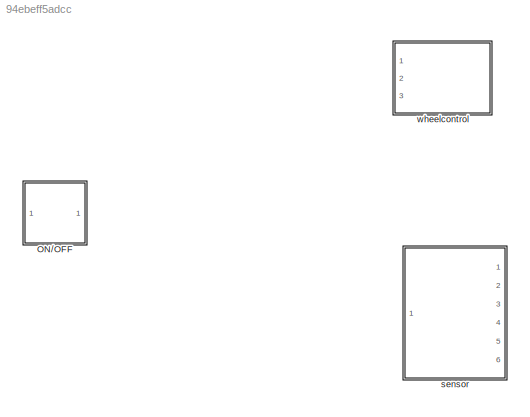
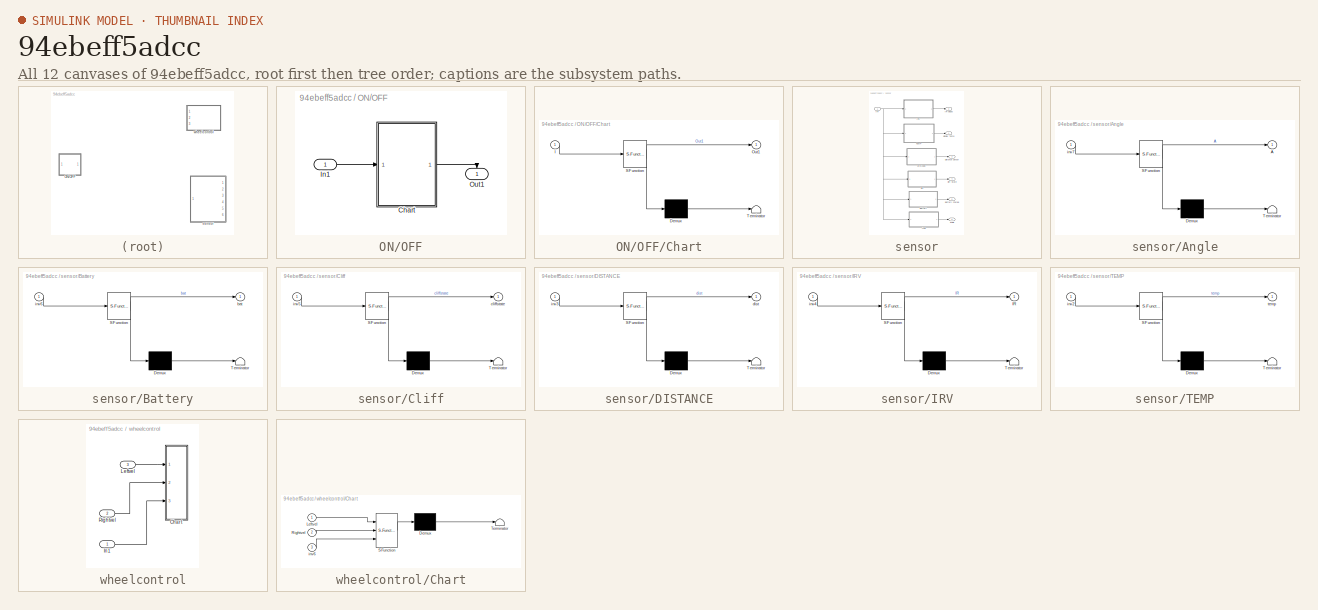
[diagram: thumbnail index - all 12 canvases of the model, root first then tree order]
MODEL slx_94ebeff5adcc
KIND library
CONFIG AbsTol = auto
CONFIG EnableMultiTasking = off
CONFIG FixedStep = auto
CONFIG MaxStep = auto
CONFIG MinStep = auto
CONFIG RelTol = 1e-3
CONFIG SampleTimeConstraint = Unconstrained
CONFIG Solver = VariableStepAuto
CONFIG SolverName = VariableStepAuto
CONFIG StartTime = 0.0
CONFIG StopTime = 10.0
BLOCK [SubSystem] ON//OFF
  Ports = [1, 1]
  RequestExecContextInheritance = off
  Variant = off
BLOCK [SubSystem] ON//OFF/Chart
  ErrorFcn = Stateflow.Translate.translate
  PermitHierarchicalResolution = ExplicitOnly
  Ports = [1, 1]
  RequestExecContextInheritance = off
  SFBlockType = Chart
  TreatAsAtomicUnit = on
  Variant = off
BLOCK [Demux] ON//OFF/Chart/ Demux 
  Outputs = 1
  Ports = [1, 1]
BLOCK [S-Function] ON//OFF/Chart/ SFunction 
  EnableBusSupport = off
  FunctionName = sf_sfun
  PortCounts = [1 2]
  Ports = [1, 2]
  SFcnIsStateOwnerBlock = off
  SFunctionDeploymentMode = off
  Tag = Stateflow S-Function library 2
BLOCK [Terminator] ON//OFF/Chart/ Terminator 
BLOCK [Inport] ON//OFF/Chart/I
  IconDisplay = Port number
BLOCK [Outport] ON//OFF/Chart/Out1
  IconDisplay = Port number
BLOCK [Inport] ON//OFF/In1
  IconDisplay = Port number
BLOCK [Outport] ON//OFF/Out1
  IconDisplay = Port number
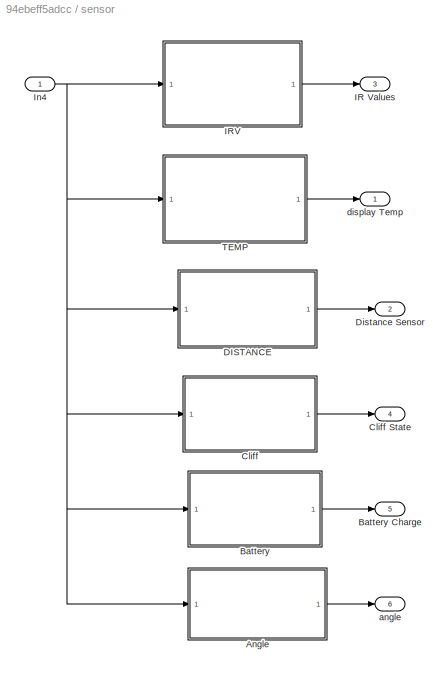
BLOCK [SubSystem] sensor
  PermitHierarchicalResolution = None
  Ports = [1, 6]
  RequestExecContextInheritance = off
  TreatAsAtomicUnit = on
  Variant = off
BLOCK [SubSystem] sensor/Angle
  ErrorFcn = Stateflow.Translate.translate
  PermitHierarchicalResolution = ExplicitOnly
  Ports = [1, 1]
  RequestExecContextInheritance = off
  SFBlockType = Chart
  TreatAsAtomicUnit = on
  Variant = off
BLOCK [Demux] sensor/Angle/ Demux 
  Outputs = 1
  Ports = [1, 1]
BLOCK [S-Function] sensor/Angle/ SFunction 
  EnableBusSupport = off
  FunctionName = sf_sfun
  PortCounts = [1 2]
  Ports = [1, 2]
  SFcnIsStateOwnerBlock = off
  SFunctionDeploymentMode = off
  Tag = Stateflow S-Function library 6
BLOCK [Terminator] sensor/Angle/ Terminator 
BLOCK [Outport] sensor/Angle/A
  IconDisplay = Port number
BLOCK [Inport] sensor/Angle/inv7
  IconDisplay = Port number
BLOCK [SubSystem] sensor/Battery
  ErrorFcn = Stateflow.Translate.translate
  PermitHierarchicalResolution = ExplicitOnly
  Ports = [1, 1]
  RequestExecContextInheritance = off
  SFBlockType = Chart
  TreatAsAtomicUnit = on
  Variant = off
BLOCK [Outport] sensor/Battery Charge
  IconDisplay = Port number
  Port = 5
BLOCK [Demux] sensor/Battery/ Demux 
  Outputs = 1
  Ports = [1, 1]
BLOCK [S-Function] sensor/Battery/ SFunction 
  EnableBusSupport = off
  FunctionName = sf_sfun
  PortCounts = [1 2]
  Ports = [1, 2]
  SFcnIsStateOwnerBlock = off
  SFunctionDeploymentMode = off
  Tag = Stateflow S-Function library 5
BLOCK [Terminator] sensor/Battery/ Terminator 
BLOCK [Outport] sensor/Battery/bat
  IconDisplay = Port number
BLOCK [Inport] sensor/Battery/inv6
  IconDisplay = Port number
BLOCK [SubSystem] sensor/Cliff
  ErrorFcn = Stateflow.Translate.translate
  PermitHierarchicalResolution = ExplicitOnly
  Ports = [1, 1]
  RequestExecContextInheritance = off
  SFBlockType = Chart
  TreatAsAtomicUnit = on
  Variant = off
BLOCK [Outport] sensor/Cliff State
  IconDisplay = Port number
  Port = 4
BLOCK [Demux] sensor/Cliff/ Demux 
  Outputs = 1
  Ports = [1, 1]
BLOCK [S-Function] sensor/Cliff/ SFunction 
  EnableBusSupport = off
  FunctionName = sf_sfun
  PortCounts = [1 2]
  Ports = [1, 2]
  SFcnIsStateOwnerBlock = off
  SFunctionDeploymentMode = off
  Tag = Stateflow S-Function library 3
BLOCK [Terminator] sensor/Cliff/ Terminator 
BLOCK [Outport] sensor/Cliff/cliffstate
  IconDisplay = Port number
BLOCK [Inport] sensor/Cliff/inv5
  IconDisplay = Port number
BLOCK [SubSystem] sensor/DISTANCE
  ErrorFcn = Stateflow.Translate.translate
  PermitHierarchicalResolution = ExplicitOnly
  Ports = [1, 1]
  RequestExecContextInheritance = off
  SFBlockType = Chart
  TreatAsAtomicUnit = on
  Variant = off
BLOCK [Demux] sensor/DISTANCE/ Demux 
  Outputs = 1
  Ports = [1, 1]
BLOCK [S-Function] sensor/DISTANCE/ SFunction 
  EnableBusSupport = off
  FunctionName = sf_sfun
  PortCounts = [1 2]
  Ports = [1, 2]
  SFcnIsStateOwnerBlock = off
  SFunctionDeploymentMode = off
  Tag = Stateflow S-Function library 10
BLOCK [Terminator] sensor/DISTANCE/ Terminator 
BLOCK [Outport] sensor/DISTANCE/dist
  IconDisplay = Port number
BLOCK [Inport] sensor/DISTANCE/inv3
  IconDisplay = Port number
BLOCK [Outport] sensor/Distance Sensor
  IconDisplay = Port number
  Port = 2
BLOCK [Outport] sensor/IR Values
  IconDisplay = Port number
  Port = 3
BLOCK [SubSystem] sensor/IRV
  ErrorFcn = Stateflow.Translate.translate
  PermitHierarchicalResolution = ExplicitOnly
  Ports = [1, 1]
  RequestExecContextInheritance = off
  SFBlockType = Chart
  TreatAsAtomicUnit = on
  Variant = off
BLOCK [Demux] sensor/IRV/ Demux 
  Outputs = 1
  Ports = [1, 1]
BLOCK [S-Function] sensor/IRV/ SFunction 
  EnableBusSupport = off
  FunctionName = sf_sfun
  PortCounts = [1 2]
  Ports = [1, 2]
  SFcnIsStateOwnerBlock = off
  SFunctionDeploymentMode = off
  Tag = Stateflow S-Function library 8
BLOCK [Terminator] sensor/IRV/ Terminator 
BLOCK [Outport] sensor/IRV/IR
  IconDisplay = Port number
BLOCK [Inport] sensor/IRV/inv4
  IconDisplay = Port number
BLOCK [Inport] sensor/In4
  IconDisplay = Port number
BLOCK [SubSystem] sensor/TEMP
  ErrorFcn = Stateflow.Translate.translate
  PermitHierarchicalResolution = ExplicitOnly
  Ports = [1, 1]
  RequestExecContextInheritance = off
  SFBlockType = Chart
  TreatAsAtomicUnit = on
  Variant = off
BLOCK [Demux] sensor/TEMP/ Demux 
  Outputs = 1
  Ports = [1, 1]
BLOCK [S-Function] sensor/TEMP/ SFunction 
  EnableBusSupport = off
  FunctionName = sf_sfun
  PortCounts = [1 2]
  Ports = [1, 2]
  SFcnIsStateOwnerBlock = off
  SFunctionDeploymentMode = off
  Tag = Stateflow S-Function library 9
BLOCK [Terminator] sensor/TEMP/ Terminator 
BLOCK [Inport] sensor/TEMP/inv2
  IconDisplay = Port number
BLOCK [Outport] sensor/TEMP/temp
  IconDisplay = Port number
BLOCK [Outport] sensor/angle
  IconDisplay = Port number
  Port = 6
BLOCK [Outport] sensor/display Temp
  IconDisplay = Port number
BLOCK [SubSystem] wheelcontrol
  AncestorBlock = mylibrary/wheelcontrol
  Ports = [3]
  RequestExecContextInheritance = off
  Variant = off
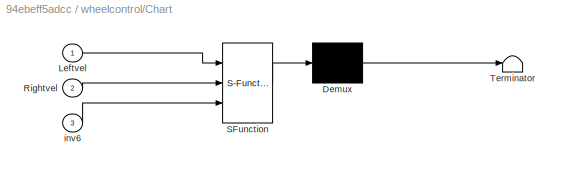
BLOCK [SubSystem] wheelcontrol/Chart
  ErrorFcn = Stateflow.Translate.translate
  PermitHierarchicalResolution = ExplicitOnly
  Ports = [3]
  RequestExecContextInheritance = off
  SFBlockType = Chart
  TreatAsAtomicUnit = on
  Variant = off
BLOCK [Demux] wheelcontrol/Chart/ Demux 
  Outputs = 1
  Ports = [1, 1]
BLOCK [S-Function] wheelcontrol/Chart/ SFunction 
  EnableBusSupport = off
  FunctionName = sf_sfun
  PortCounts = [3 1]
  Ports = [3, 1]
  SFcnIsStateOwnerBlock = off
  SFunctionDeploymentMode = off
  Tag = Stateflow S-Function library 11
BLOCK [Terminator] wheelcontrol/Chart/ Terminator 
BLOCK [Inport] wheelcontrol/Chart/Leftvel
  IconDisplay = Port number
BLOCK [Inport] wheelcontrol/Chart/Rightvel
  IconDisplay = Port number
  Port = 2
BLOCK [Inport] wheelcontrol/Chart/inv6
  IconDisplay = Port number
  Port = 3
BLOCK [Inport] wheelcontrol/In1
  IconDisplay = Port number
BLOCK [Inport] wheelcontrol/Leftvel
  IconDisplay = Port number
  Port = 3
BLOCK [Inport] wheelcontrol/Rightvel
  IconDisplay = Port number
  Port = 2
LINE ON//OFF/Chart:1 -> ON//OFF/Out1:1
LINE ON//OFF/In1:1 -> ON//OFF/Chart:1
LINE sensor/Angle:1 -> sensor/angle:1
LINE sensor/Battery:1 -> sensor/Battery Charge:1
LINE sensor/Cliff:1 -> sensor/Cliff State:1
LINE sensor/DISTANCE:1 -> sensor/Distance Sensor:1
LINE sensor/IRV:1 -> sensor/IR Values:1
NET sensor/In4:1 -> sensor/Angle:1, sensor/Battery:1, sensor/Cliff:1, sensor/DISTANCE:1, sensor/IRV:1, sensor/TEMP:1
LINE sensor/TEMP:1 -> sensor/display Temp:1
note: NET lines group one-source signal fan-out (src -> all destinations, sorted); 1:1 wires keep LINE
CHART ON//OFF/Chart states=4 transitions=3
  STATE_LABEL 'tcpinit'
  STATE_LABEL "SCRIPT:\nfunction tcpinit\ncoder.extrinsic('RoombaInit_wifi');\ncoder.extrinsic('assignin');\npersistent tcpobj\ntcpobj=RoombaInit_wifi('10.0.0.1','full');\nassignin('base','ha',tcpobj);\n\n\n"
  STATE_LABEL 'init\nen:\ntcpinit;\nOut1=1;\n'
  STATE_LABEL 'OFF'
  STATE_LABEL "SCRIPT:\nfunction OFF\npersistent sl\n\ncoder.extrinsic('evalin');\ncoder.extrinsic('get');\nsl = evalin('base','ha');\ncoder.extrinsic('PowerOffRoomba')\nPowerOffRoomba(sl);\n\n\n\n\n"
  STATE_LABEL 'TurnRoombaOff\nen:\nOFF;\nOut1=0;\n'
CHART sensor/Cliff states=3 transitions=3
  STATE_LABEL 'y=CliffState'
  STATE_LABEL "SCRIPT:\nfunction y=CliffState\npersistent so4\ny=zeros(1,4);\ncoder.extrinsic('evalin');\ncoder.extrinsic('get');\nso4 = evalin('base','ha');\ncsr=[0,0,0,0];\ncoder.extrinsic('CliffStateRoomba');\ncsr= CliffStateRoomba(so4);\ny=csr;\n \n"
  STATE_LABEL 'on\nen,du:\ncliffstate=CliffState;'
  STATE_LABEL 'off\nen,du:\ncliffstate=[0,0,0,0];'
CHART sensor/Battery states=3 transitions=3
  STATE_LABEL 'y=battery'
  STATE_LABEL "SCRIPT:\nfunction y=battery\npersistent so5\ny=0;\ncoder.extrinsic('evalin');\ncoder.extrinsic('get');\nso5 = evalin('base','ha');\nB=0;\ncoder.extrinsic('BatteryChargeReaderRoomba_me');\nB= BatteryChargeReaderRoomba_me(so5);\ny=B;\n \n"
  STATE_LABEL 'on\nen,du:\nbat=battery;'
  STATE_LABEL 'off\nen,du:\nbat=0;\n'
CHART sensor/Angle states=3 transitions=3
  STATE_LABEL 'y=Angle'
  STATE_LABEL "SCRIPT:\nfunction y=Angle\npersistent so6\ny=0;\nA=0;\ncoder.extrinsic('AngleSensorRoomba');\ncoder.extrinsic('evalin');\ncoder.extrinsic('get');\nso6 = evalin('base','ha');\nA= AngleSensorRoomba(so6);\n\ny=A;"
  STATE_LABEL 'on\nen,du:\nA=Angle;'
  STATE_LABEL 'off\nen,du:\nA=0;'
CHART sensor/IRV states=3 transitions=3
  STATE_LABEL 'y= IRV'
  STATE_LABEL "SCRIPT:\nfunction y= IRV\npersistent so1\ny=zeros(1,6);\ncoder.extrinsic('evalin');\n\n    so1 = evalin('base','ha');\n\nIR = zeros(1, 6);\ncoder.extrinsic('RangeStateRoomba');\nIR = RangeStateRoomba(so1);\ny=IR;\n\n"
  STATE_LABEL 'on\nen,du:\nIR=IRV;'
  STATE_LABEL 'off\nen,du:\nIR=zeros(1,6);'
CHART sensor/TEMP states=3 transitions=3
  STATE_LABEL 'y= T'
  STATE_LABEL "SCRIPT:\nfunction y= T\npersistent so2\ny=1;\ncoder.extrinsic('evalin');\ncoder.extrinsic('get');\nso2 = evalin('base','ha');\ntemp=0;  \ncoder.extrinsic('TemperatureRoomba');\ntemp=TemperatureRoomba(so2);\n\ny=temp;\n\n"
  STATE_LABEL 'off\nen,du:\ntemp=0;'
  STATE_LABEL 'on\nen,du:\ntemp=T;'
CHART sensor/DISTANCE states=3 transitions=3
  STATE_LABEL 'y=Distance'
  STATE_LABEL "SCRIPT:\nfunction y=Distance\npersistent so3\ny=0;\ncoder.extrinsic('evalin');\ncoder.extrinsic('get');\nso3 = evalin('base','ha');\ndist=0;\ncoder.extrinsic('DistanceSensorRoomba');\ndist= DistanceSensorRoomba(so3);\ny=dist;\n"
  STATE_LABEL 'on\nen,du:\ndist=Distance;\n'
  STATE_LABEL 'off\nen,du:\ndist=0;'
CHART wheelcontrol/Chart states=3 transitions=3
  STATE_LABEL 'tcpget3(u1,u2)'
  STATE_LABEL "SCRIPT:\nfunction tcpget3(u1,u2)\npersistent so\ncoder.extrinsic('evalin');\ncoder.extrinsic('get');\nso = evalin('base','ha');\ncoder.extrinsic('SetWheelVelRoomba');\nSetWheelVelRoomba(so,u1 , u2);"
  STATE_LABEL 'wheel\nen,du:\ntcpget3(Rightvel,Leftvel);'
  STATE_LABEL 'off\nen,du:\n'
